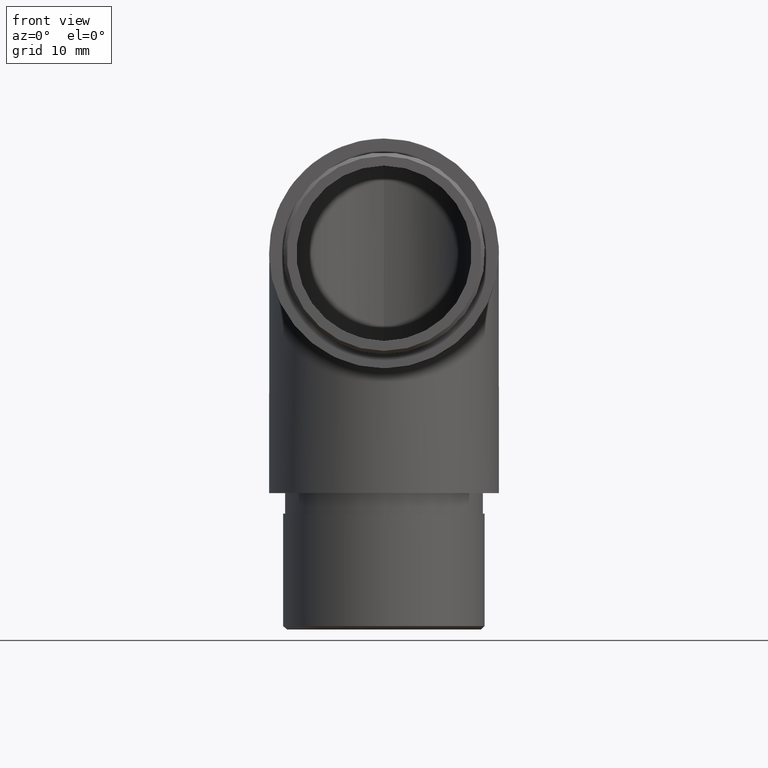
[diagram: clean part render]
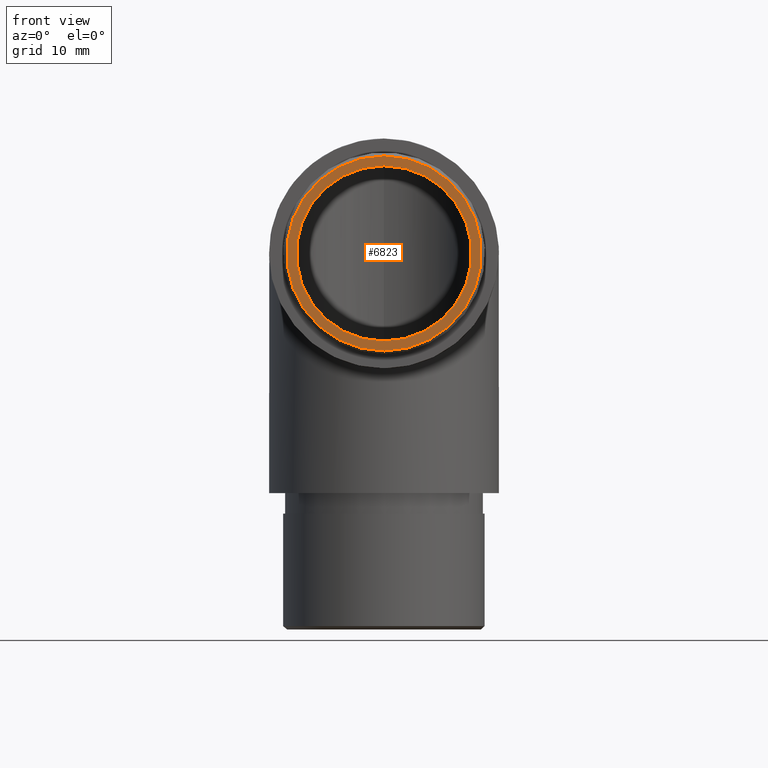
[diagram: same view with one face highlighted and labeled with its STEP entity id]
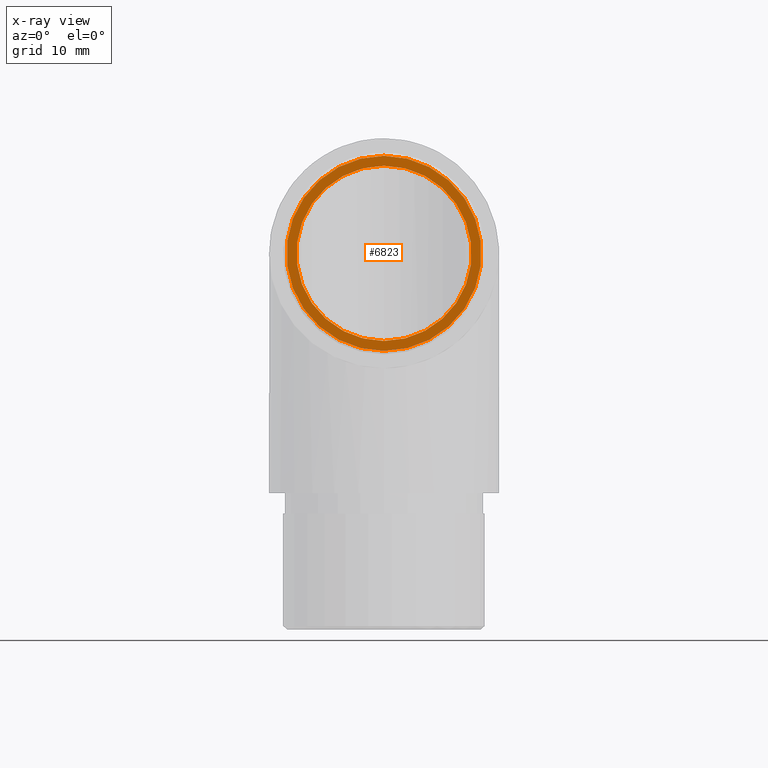
[diagram: x-ray of the same camera — body ghosted, the highlighted face saturated]
A machine part, front view. The second image highlights one B-rep face of the part: STEP entity #6823.
The next image is the same camera in x-ray: the body ghosted, the highlighted face saturated — about 0% of this face is hidden behind the body in this view.
In plain terms, the highlighted planar face has unit normal (0, -1, 0).
Its self-contained STEP definition (entity closure, byte-faithful):
#281 = CIRCLE ( 'NONE', #10509, 12.85000000000000000 ) ;
#1568 = DIRECTION ( 'NONE',  ( 0.0000000000000000000, -1.000000000000000000, 0.0000000000000000000 ) ) ;
#1872 = DIRECTION ( 'NONE',  ( 0.0000000000000000000, -1.000000000000000000, 0.0000000000000000000 ) ) ;
#2370 = EDGE_CURVE ( 'NONE', #6117, #6117, #6306, .T. ) ;
#3348 = EDGE_LOOP ( 'NONE', ( #6681 ) ) ;
#3687 = VERTEX_POINT ( 'NONE', #8129 ) ;
#3775 = ORIENTED_EDGE ( 'NONE', *, *, #2370, .T. ) ;
#4009 = DIRECTION ( 'NONE',  ( 0.0000000000000000000, -0.0000000000000000000, -1.000000000000000000 ) ) ;
#4065 = CARTESIAN_POINT ( 'NONE',  ( 0.0000000000000000000, -20.00000000000000000, -14.29999999999997900 ) ) ;
#5212 = EDGE_CURVE ( 'NONE', #3687, #3687, #281, .T. ) ;
#6117 = VERTEX_POINT ( 'NONE', #4065 ) ;
#6180 = FACE_BOUND ( 'NONE', #3348, .T. ) ;
#6306 = CIRCLE ( 'NONE', #7305, 14.29999999999997900 ) ;
#6436 = CARTESIAN_POINT ( 'NONE',  ( 0.0000000000000000000, -20.00000000000000000, 0.0000000000000000000 ) ) ;
#6642 = EDGE_LOOP ( 'NONE', ( #3775 ) ) ;
#6681 = ORIENTED_EDGE ( 'NONE', *, *, #5212, .F. ) ;
#6823 = ADVANCED_FACE ( 'NONE', ( #9936, #6180 ), #9721, .T. ) ;
#6831 = CARTESIAN_POINT ( 'NONE',  ( 0.0000000000000000000, -20.00000000000000000, 0.0000000000000000000 ) ) ;
#7151 = DIRECTION ( 'NONE',  ( 0.0000000000000000000, -1.000000000000000000, 0.0000000000000000000 ) ) ;
#7305 = AXIS2_PLACEMENT_3D ( 'NONE', #8752, #7151, #8907 ) ;
#8129 = CARTESIAN_POINT ( 'NONE',  ( 0.0000000000000000000, -20.00000000000000000, -12.85000000000000000 ) ) ;
#8497 = DIRECTION ( 'NONE',  ( 0.0000000000000000000, 0.0000000000000000000, -1.000000000000000000 ) ) ;
#8752 = CARTESIAN_POINT ( 'NONE',  ( 0.0000000000000000000, -20.00000000000000000, 0.0000000000000000000 ) ) ;
#8907 = DIRECTION ( 'NONE',  ( 0.0000000000000000000, 0.0000000000000000000, -1.000000000000000000 ) ) ;
#8999 = AXIS2_PLACEMENT_3D ( 'NONE', #6436, #1568, #4009 ) ;
#9721 = PLANE ( 'NONE',  #8999 ) ;
#9936 = FACE_OUTER_BOUND ( 'NONE', #6642, .T. ) ;
#10509 = AXIS2_PLACEMENT_3D ( 'NONE', #6831, #1872, #8497 ) ;